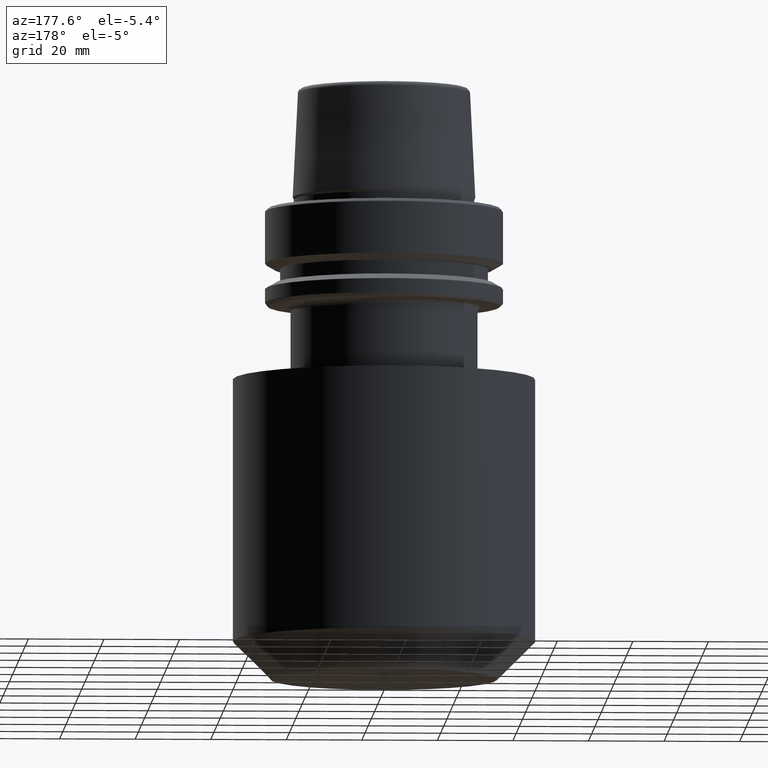
[diagram: clean part render]
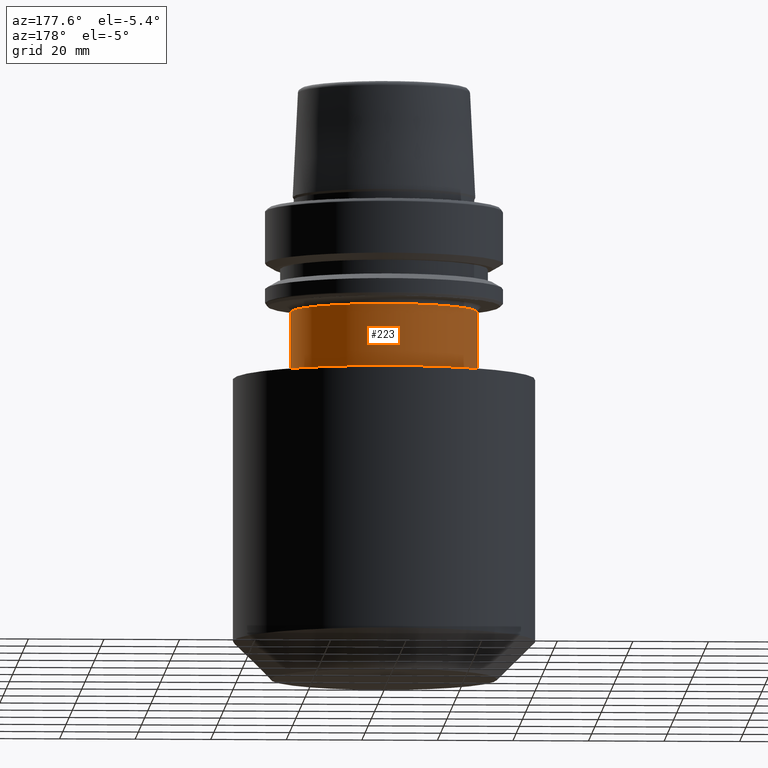
[diagram: same view with one face highlighted and labeled with its STEP entity id]
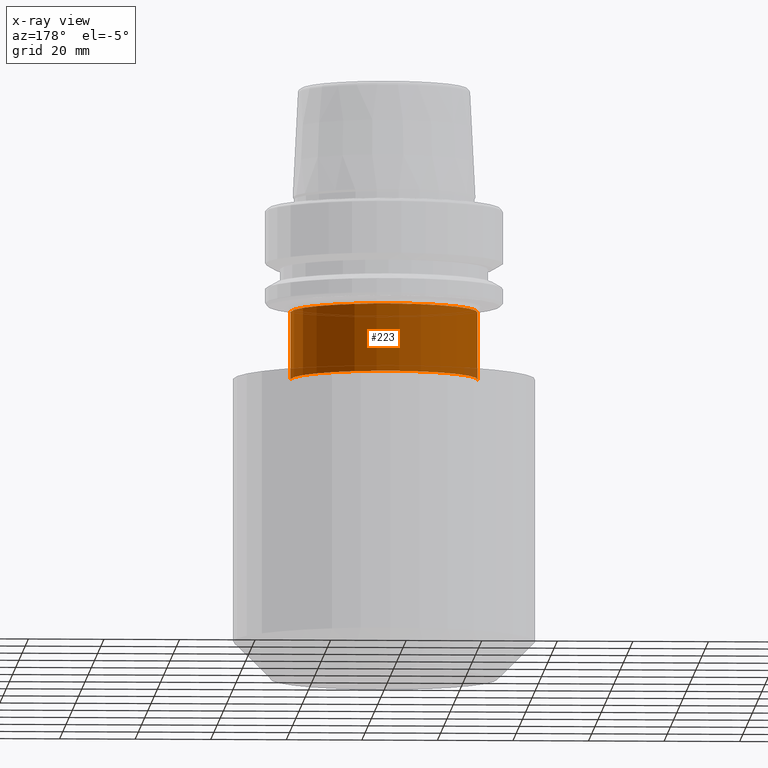
[diagram: x-ray of the same camera — body ghosted, the highlighted face saturated]
A machine part, auxiliary view. The second image highlights one B-rep face of the part: STEP entity #223.
The next image is the same camera in x-ray: the body ghosted, the highlighted face saturated — about 2% of this face is hidden behind the body in this view.
In plain terms, the highlighted cylindrical surface (partial cylindrical patch) has radius 24.75 mm, axis along (-0, -0, 1).
Its self-contained STEP definition (entity closure, byte-faithful):
#25 = EDGE_CURVE ( 'NONE', #752, #33, #588, .T. ) ;
#33 = VERTEX_POINT ( 'NONE', #864 ) ;
#176 = CARTESIAN_POINT ( 'NONE',  ( 24.75000000000000000, 0.0000000000000000000, -45.38284271247462700 ) ) ;
#198 = FACE_OUTER_BOUND ( 'NONE', #428, .T. ) ;
#223 = ADVANCED_FACE ( 'NONE', ( #198 ), #1092, .T. ) ;
#231 = EDGE_CURVE ( 'NONE', #241, #856, #1014, .T. ) ;
#241 = VERTEX_POINT ( 'NONE', #755 ) ;
#246 = CARTESIAN_POINT ( 'NONE',  ( 0.0000000000000000000, 0.0000000000000000000, -27.50000000000001100 ) ) ;
#272 = ORIENTED_EDGE ( 'NONE', *, *, #231, .T. ) ;
#327 = DIRECTION ( 'NONE',  ( 1.000000000000000000, 0.0000000000000000000, 0.0000000000000000000 ) ) ;
#348 = ORIENTED_EDGE ( 'NONE', *, *, #365, .F. ) ;
#365 = EDGE_CURVE ( 'NONE', #752, #856, #1320, .T. ) ;
#428 = EDGE_LOOP ( 'NONE', ( #1243, #901, #272, #348 ) ) ;
#452 = DIRECTION ( 'NONE',  ( -0.0000000000000000000, -0.0000000000000000000, 1.000000000000000000 ) ) ;
#588 = CIRCLE ( 'NONE', #1021, 24.75000000000000000 ) ;
#601 = CARTESIAN_POINT ( 'NONE',  ( -24.75000000000000000, 3.031000827889699300E-015, 31.31059451800105700 ) ) ;
#625 = EDGE_CURVE ( 'NONE', #33, #241, #689, .T. ) ;
#632 = CARTESIAN_POINT ( 'NONE',  ( 24.75000000000000000, 0.0000000000000000000, 31.31059451800105700 ) ) ;
#689 = LINE ( 'NONE', #601, #1063 ) ;
#734 = AXIS2_PLACEMENT_3D ( 'NONE', #745, #1075, #327 ) ;
#745 = CARTESIAN_POINT ( 'NONE',  ( 0.0000000000000000000, 0.0000000000000000000, 31.31059451800105700 ) ) ;
#752 = VERTEX_POINT ( 'NONE', #176 ) ;
#755 = CARTESIAN_POINT ( 'NONE',  ( -24.75000000000000000, 3.031000827889699300E-015, -27.50000000000001100 ) ) ;
#856 = VERTEX_POINT ( 'NONE', #1300 ) ;
#857 = DIRECTION ( 'NONE',  ( 1.000000000000000000, 0.0000000000000000000, 0.0000000000000000000 ) ) ;
#864 = CARTESIAN_POINT ( 'NONE',  ( -24.75000000000000000, 3.031000827889699300E-015, -45.38284271247462700 ) ) ;
#901 = ORIENTED_EDGE ( 'NONE', *, *, #625, .T. ) ;
#973 = AXIS2_PLACEMENT_3D ( 'NONE', #246, #1187, #857 ) ;
#1014 = CIRCLE ( 'NONE', #973, 24.75000000000000000 ) ;
#1021 = AXIS2_PLACEMENT_3D ( 'NONE', #1176, #452, #1287 ) ;
#1063 = VECTOR ( 'NONE', #1233, 1000.000000000000000 ) ;
#1070 = DIRECTION ( 'NONE',  ( -0.0000000000000000000, -0.0000000000000000000, 1.000000000000000000 ) ) ;
#1075 = DIRECTION ( 'NONE',  ( -0.0000000000000000000, -0.0000000000000000000, 1.000000000000000000 ) ) ;
#1092 = CYLINDRICAL_SURFACE ( 'NONE', #734, 24.75000000000000000 ) ;
#1129 = VECTOR ( 'NONE', #1070, 1000.000000000000000 ) ;
#1176 = CARTESIAN_POINT ( 'NONE',  ( 0.0000000000000000000, 0.0000000000000000000, -45.38284271247462700 ) ) ;
#1187 = DIRECTION ( 'NONE',  ( 0.0000000000000000000, 0.0000000000000000000, -1.000000000000000000 ) ) ;
#1233 = DIRECTION ( 'NONE',  ( -0.0000000000000000000, -0.0000000000000000000, 1.000000000000000000 ) ) ;
#1243 = ORIENTED_EDGE ( 'NONE', *, *, #25, .T. ) ;
#1287 = DIRECTION ( 'NONE',  ( 1.000000000000000000, 0.0000000000000000000, 0.0000000000000000000 ) ) ;
#1300 = CARTESIAN_POINT ( 'NONE',  ( 24.75000000000000000, 0.0000000000000000000, -27.50000000000001100 ) ) ;
#1320 = LINE ( 'NONE', #632, #1129 ) ;